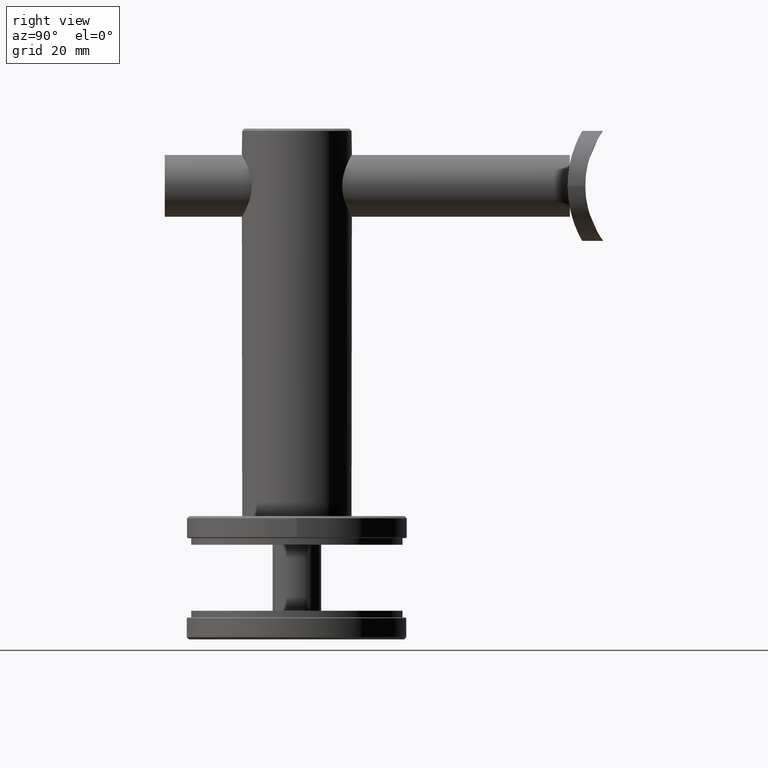
[diagram: clean part render]
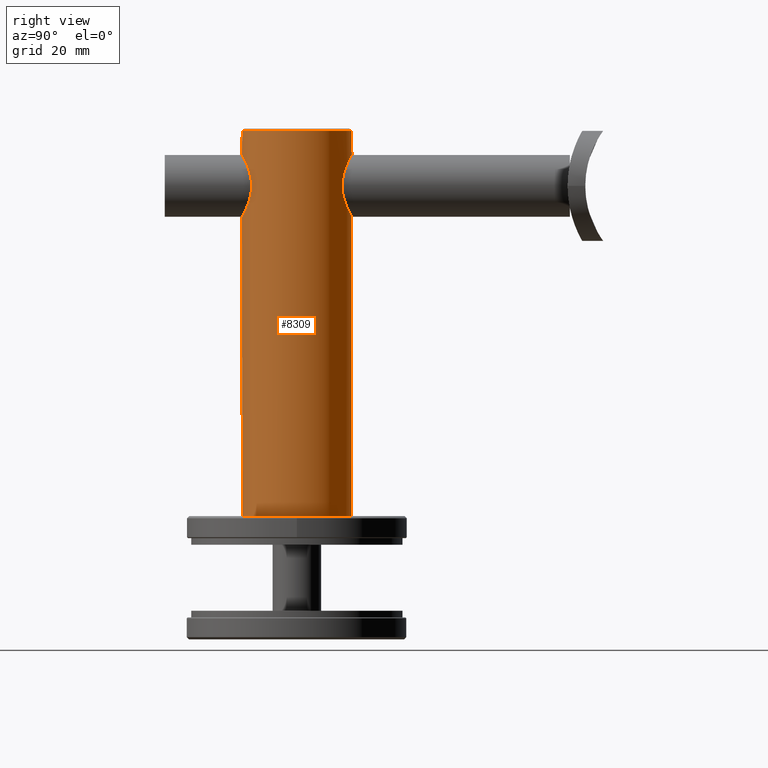
[diagram: same view with one face highlighted and labeled with its STEP entity id]
A machine part, right view. The second image highlights one B-rep face of the part: STEP entity #8309.
In plain terms, the highlighted cylindrical surface (bore or boss wall) has radius 12.5 mm, axis along (0, 0, -1).
Its self-contained STEP definition (entity closure, byte-faithful):
#35 = CARTESIAN_POINT ( 'NONE',  ( 4.693911986042605700, -11.59050969572359200, 74.65372349926248300 ) ) ;
#101 = CARTESIAN_POINT ( 'NONE',  ( 7.037625937007606000, -10.33066797645803400, 79.03146245814461700 ) ) ;
#181 = CARTESIAN_POINT ( 'NONE',  ( -12.50000000000000000, 0.0000000000000000000, 92.49999999999992900 ) ) ;
#195 = CARTESIAN_POINT ( 'NONE',  ( -1.853286471380417800, 12.37060092623068500, 73.12994769052774300 ) ) ;
#259 = CARTESIAN_POINT ( 'NONE',  ( 5.642930842882249100, 11.15754655068284000, 75.66678379310440100 ) ) ;
#320 = CARTESIAN_POINT ( 'NONE',  ( 2.561768883189979200, 12.23664740688127500, 73.37418452748443100 ) ) ;
#345 = EDGE_LOOP ( 'NONE', ( #6296 ) ) ;
#387 = CARTESIAN_POINT ( 'NONE',  ( -4.693911986042607500, 11.59050969572359500, 74.65372349926244100 ) ) ;
#687 = CARTESIAN_POINT ( 'NONE',  ( -12.27048429038587300, -2.384368947833684700, 80.96252044110579500 ) ) ;
#758 = CARTESIAN_POINT ( 'NONE',  ( -12.49643028261011300, 0.3415049694015387900, 77.50694967542543200 ) ) ;
#831 = CARTESIAN_POINT ( 'NONE',  ( -12.36584555837984900, 1.826434676164832900, 78.22618026212101900 ) ) ;
#912 = CARTESIAN_POINT ( 'NONE',  ( -12.44835718420770700, -1.145758669755629200, 82.25498875822646000 ) ) ;
#975 = CARTESIAN_POINT ( 'NONE',  ( -5.641618946878540300, 11.15821024869227400, 84.33490563956949900 ) ) ;
#985 = CARTESIAN_POINT ( 'NONE',  ( -12.43368545268307200, -1.293684300312520500, 82.17814739697726600 ) ) ;
#1106 = CARTESIAN_POINT ( 'NONE',  ( -2.561768883189977400, -12.23664740688127700, 73.37418452748443100 ) ) ;
#1124 = CARTESIAN_POINT ( 'NONE',  ( -12.23046832684916700, 2.581790949310058800, 80.00104714717409100 ) ) ;
#1144 = CARTESIAN_POINT ( 'NONE',  ( -4.167489591241087000, 11.78650720189665800, 85.75274438239226500 ) ) ;
#1177 = CARTESIAN_POINT ( 'NONE',  ( -6.361835953135453400, -10.76070739544479300, 76.83933852459222200 ) ) ;
#1240 = CARTESIAN_POINT ( 'NONE',  ( -6.144291566700927900, -10.88638881761785300, 76.43483257053729600 ) ) ;
#1255 = CARTESIAN_POINT ( 'NONE',  ( -12.31451094670359400, 2.145418407564679600, 81.39615240240594600 ) ) ;
#1367 = CARTESIAN_POINT ( 'NONE',  ( -5.335835450798519700, -11.30507663162559200, 84.68941556034548100 ) ) ;
#1435 = CARTESIAN_POINT ( 'NONE',  ( 2.552512006404772400, -12.23860169328429000, 86.62942539281218000 ) ) ;
#1559 = CARTESIAN_POINT ( 'NONE',  ( 5.354227270072694700, -11.30066879763864500, 84.68499769419686600 ) ) ;
#1694 = CARTESIAN_POINT ( 'NONE',  ( 7.001530568193297600, -10.35528030401141400, 78.79837147415904000 ) ) ;
#1725 = CARTESIAN_POINT ( 'NONE',  ( -7.001530568193298400, 10.35528030401141600, 78.79837147415901200 ) ) ;
#1762 = AXIS2_PLACEMENT_3D ( 'NONE', #2663, #15312, #5822 ) ;
#1789 = CARTESIAN_POINT ( 'NONE',  ( 7.049804425350002300, 10.32294463227303900, 80.96515897974055100 ) ) ;
#1811 = FACE_BOUND ( 'NONE', #345, .T. ) ;
#1854 = CARTESIAN_POINT ( 'NONE',  ( 4.716523181865117200, 11.58129685567271500, 74.67363696498284800 ) ) ;
#1924 = CARTESIAN_POINT ( 'NONE',  ( 3.605539113816680400, 11.97534002329462400, 73.86663764570010900 ) ) ;
#1985 = CARTESIAN_POINT ( 'NONE',  ( -6.859185124894941600, 10.45057995091122500, 78.10713310867888000 ) ) ;
#2160 = CARTESIAN_POINT ( 'NONE',  ( -4.703235346696010000, 11.58298069406303900, 85.32372804176566200 ) ) ;
#2280 = CARTESIAN_POINT ( 'NONE',  ( -12.41716814065016700, -1.436640305303482000, 77.91473517731044800 ) ) ;
#2351 = CARTESIAN_POINT ( 'NONE',  ( -12.28295426349316300, -2.320217730702971900, 78.88694419709261800 ) ) ;
#2431 = CARTESIAN_POINT ( 'NONE',  ( -12.25790753403024300, -2.449091687754438000, 80.81102413356170200 ) ) ;
#2452 = CARTESIAN_POINT ( 'NONE',  ( -4.350185171942293000, 11.72014306462431000, 85.61590526619761500 ) ) ;
#2500 = CARTESIAN_POINT ( 'NONE',  ( -12.41739162065920800, -1.434707405425410300, 82.08652194114984000 ) ) ;
#2571 = CARTESIAN_POINT ( 'NONE',  ( -12.29563780309713300, -2.254923467992178100, 81.26551305619401000 ) ) ;
#2663 = CARTESIAN_POINT ( 'NONE',  ( 0.0000000000000000000, 0.0000000000000000000, 92.49999999999992900 ) ) ;
#2694 = CARTESIAN_POINT ( 'NONE',  ( -6.718937078870830200, -10.54276979942761200, 82.34036103084744700 ) ) ;
#2710 = CARTESIAN_POINT ( 'NONE',  ( -12.23046101903848800, 2.581825567894134200, 79.83740140945408800 ) ) ;
#2759 = CARTESIAN_POINT ( 'NONE',  ( -4.360704997454967600, -11.72147315400054200, 74.37840787716005800 ) ) ;
#2827 = CARTESIAN_POINT ( 'NONE',  ( 1.853286471380416900, -12.37060092623069200, 73.12994769052775700 ) ) ;
#2895 = CARTESIAN_POINT ( 'NONE',  ( -3.184456486232202000, -12.09553283554605900, 86.36278829441434400 ) ) ;
#2912 = CARTESIAN_POINT ( 'NONE',  ( -12.29817642840795400, 2.239177090557027800, 81.26002018840563300 ) ) ;
#2965 = CARTESIAN_POINT ( 'NONE',  ( -5.625106057332109400, -11.16396342920787900, 84.33819548883795400 ) ) ;
#3034 = CARTESIAN_POINT ( 'NONE',  ( 5.175251503206552300, -11.37969477022132700, 75.13398084494915000 ) ) ;
#3067 = CIRCLE ( 'NONE', #9073, 12.50000000000000000 ) ;
#3100 = CARTESIAN_POINT ( 'NONE',  ( 5.618916498746309600, -11.16709125779064800, 75.65375140950391100 ) ) ;
#3293 = CARTESIAN_POINT ( 'NONE',  ( 6.856596184691691900, -10.45197745669437200, 81.85805003137291200 ) ) ;
#3323 = CARTESIAN_POINT ( 'NONE',  ( -7.037625937007599800, 10.33066797645802700, 79.03146245814458800 ) ) ;
#3391 = CARTESIAN_POINT ( 'NONE',  ( -6.356607340930143100, 10.76513610372195600, 76.80371625946746400 ) ) ;
#3457 = CARTESIAN_POINT ( 'NONE',  ( -2.310420913900503900, 12.29250456500398600, 73.27031743588234700 ) ) ;
#3508 = CARTESIAN_POINT ( 'NONE',  ( 0.0000000000000000000, 12.50000000000000900, 87.09999999999999400 ) ) ;
#3524 = CARTESIAN_POINT ( 'NONE',  ( -6.856596184691688300, 10.45197745669436900, 81.85805003137291200 ) ) ;
#3592 = CARTESIAN_POINT ( 'NONE',  ( 5.762524363847195900, 11.09342687341459800, 84.15394023452492400 ) ) ;
#3819 = CARTESIAN_POINT ( 'NONE',  ( -3.600675860934234000, 11.97681173761797200, 86.13622710087231800 ) ) ;
#3836 = ORIENTED_EDGE ( 'NONE', *, *, #12334, .F. ) ;
#3895 = CARTESIAN_POINT ( 'NONE',  ( -12.47310918696619600, -0.8342181446663503600, 77.61927697057785700 ) ) ;
#3972 = CARTESIAN_POINT ( 'NONE',  ( -12.23403564471512400, -2.565056403315160200, 80.32929715547818700 ) ) ;
#4050 = CARTESIAN_POINT ( 'NONE',  ( -12.47321102047029800, 0.8329561184921378000, 77.61876034139868400 ) ) ;
#4121 = CARTESIAN_POINT ( 'NONE',  ( -12.33086616637966400, -2.063339094937965500, 81.54347580391274200 ) ) ;
#4180 = CARTESIAN_POINT ( 'NONE',  ( -3.198048903789800800, 12.09203204625984400, 86.35616846345202200 ) ) ;
#4184 = CARTESIAN_POINT ( 'NONE',  ( -12.48312508354058000, -0.6701835518287474500, 82.42924852016827200 ) ) ;
#4307 = CARTESIAN_POINT ( 'NONE',  ( -1.662763347459026900, -12.39107304167199400, 73.09346473338199200 ) ) ;
#4318 = CARTESIAN_POINT ( 'NONE',  ( -12.27046648723404600, 2.384460564921596400, 80.96230595464940900 ) ) ;
#4358 = CARTESIAN_POINT ( 'NONE',  ( 1.872139394921787500, 12.36771263791769100, 86.86486067165591900 ) ) ;
#4428 = CARTESIAN_POINT ( 'NONE',  ( 1.626303258728256700E-016, 12.50000000000000900, 87.09999999999999400 ) ) ;
#4435 = EDGE_LOOP ( 'NONE', ( #18890 ) ) ;
#4444 = CARTESIAN_POINT ( 'NONE',  ( 3.575190798629522600, -11.98464729610662800, 73.84842911643905000 ) ) ;
#4480 = EDGE_LOOP ( 'NONE', ( #20482 ) ) ;
#4504 = CARTESIAN_POINT ( 'NONE',  ( -7.100939746325477300, -10.28720837068595800, 79.53372672903482500 ) ) ;
#4522 = CARTESIAN_POINT ( 'NONE',  ( -12.43356324150588700, 1.294716418200053200, 82.17746046415922500 ) ) ;
#4690 = B_SPLINE_CURVE_WITH_KNOTS ( 'NONE', 3,
 ( #10406, #5729, #18107, #16802, #4184, #19963, #8738, #912, #985, #2500, #10184, #12092, #16728, #4121, #2571, #687, #2431, #11874, #13691, #3972, #13559, #15289, #10334, #7093, #13629, #18185, #8586, #18395, #2351, #7027, #16503, #5506, #11799, #18330, #8661, #8813, #2280, #19894, #15073, #13410, #3895, #15000, #16582, #19747, #5655, #13488, #10256, #758, #5581, #16653, #4050, #7168, #15150, #18256, #831, #19820, #7231, #12433, #16871, #18541, #9217, #5801, #16939, #12298, #20221, #2710, #1124, #7571, #20153, #4318, #7447, #2912, #1255, #12235, #13832, #5933, #15495, #12169, #13902, #4522, #9084, #20286, #20092, #6061, #15356 ),
 .UNSPECIFIED., .T., .F.,
 ( 4, 3, 3, 3, 3, 3, 3, 3, 3, 3, 3, 3, 3, 3, 3, 3, 3, 3, 3, 3, 3, 3, 3, 3, 3, 3, 3, 3, 4 ),
 ( 0.0000000000000000000, 0.03571428571428571200, 0.07142857142857142500, 0.1071428571428571400, 0.1428571428571428500, 0.1785714285714285800, 0.2142857142857142700, 0.2500000000000000000, 0.2857142857142857000, 0.3214285714285714500, 0.3571428571428571500, 0.3928571428571428500, 0.4285714285714285500, 0.4642857142857143000, 0.5000000000000000000, 0.5357142857142857000, 0.5714285714285714000, 0.6071428571428571000, 0.6428571428571429000, 0.6785714285714286000, 0.7142857142857143000, 0.7500000000000000000, 0.7857142857142857000, 0.8214285714285714000, 0.8571428571428571000, 0.8928571428571429000, 0.9285714285714286000, 0.9642857142857143000, 1.000000000000000000 ),
 .UNSPECIFIED. ) ;
#4702 = CARTESIAN_POINT ( 'NONE',  ( 6.639358407684966300, -10.59150144861526900, 82.52634640713077400 ) ) ;
#4766 = CARTESIAN_POINT ( 'NONE',  ( 4.350185171942295700, -11.72014306462431100, 85.61590526619762900 ) ) ;
#4869 = EDGE_CURVE ( 'NONE', #20181, #20181, #4690, .T. ) ;
#4904 = CARTESIAN_POINT ( 'NONE',  ( 6.716677798686966100, -10.54423309525403800, 77.65288986509250400 ) ) ;
#4935 = CARTESIAN_POINT ( 'NONE',  ( -7.099407664463041300, 10.28826570890215400, 79.74334127595248800 ) ) ;
#5006 = CARTESIAN_POINT ( 'NONE',  ( 6.860853880118836100, 10.44947904693423300, 81.88678518319302700 ) ) ;
#5069 = CARTESIAN_POINT ( 'NONE',  ( 7.053651354597871400, 10.32029331651082200, 79.06324464011741800 ) ) ;
#5133 = CARTESIAN_POINT ( 'NONE',  ( -6.718676569906834900, 10.54116355741437700, 82.30751951410997000 ) ) ;
#5188 = CARTESIAN_POINT ( 'NONE',  ( 12.50000000000000000, 0.0000000000000000000, 5.000000000000004400 ) ) ;
#5201 = CARTESIAN_POINT ( 'NONE',  ( 5.335835450798510000, 11.30507663162559800, 84.68941556034549500 ) ) ;
#5470 = CARTESIAN_POINT ( 'NONE',  ( -5.354227270072692900, 11.30066879763865200, 84.68499769419686600 ) ) ;
#5506 = CARTESIAN_POINT ( 'NONE',  ( -12.33061314716617900, -2.053038477629675700, 78.46949508240453500 ) ) ;
#5551 = DIRECTION ( 'NONE',  ( 0.0000000000000000000, 0.0000000000000000000, -1.000000000000000000 ) ) ;
#5581 = CARTESIAN_POINT ( 'NONE',  ( -12.48971849393115700, 0.5068845453888349800, 77.53913938316971200 ) ) ;
#5588 = FACE_OUTER_BOUND ( 'NONE', #4435, .T. ) ;
#5655 = CARTESIAN_POINT ( 'NONE',  ( -12.50000000000000000, -0.1700820020573731400, 77.49029503976389300 ) ) ;
#5729 = CARTESIAN_POINT ( 'NONE',  ( -12.50000000000000000, -0.1698553404806654500, 82.50970459479894700 ) ) ;
#5801 = CARTESIAN_POINT ( 'NONE',  ( -12.25776322044042400, 2.449810243984445800, 79.19102811394681400 ) ) ;
#5822 = DIRECTION ( 'NONE',  ( -1.000000000000000000, 0.0000000000000000000, 0.0000000000000000000 ) ) ;
#5836 = CARTESIAN_POINT ( 'NONE',  ( 0.0000000000000000000, 0.0000000000000000000, 5.000000000000004400 ) ) ;
#5838 = VERTEX_POINT ( 'NONE', #181 ) ;
#5920 = CARTESIAN_POINT ( 'NONE',  ( -6.728327433932022900, -10.53676638689296600, 77.68631603766704100 ) ) ;
#5933 = CARTESIAN_POINT ( 'NONE',  ( -12.36594733669262100, 1.825745454915521400, 81.77449007377433100 ) ) ;
#5984 = CARTESIAN_POINT ( 'NONE',  ( -5.183621414992732200, -11.37587540671378200, 84.85708113046858600 ) ) ;
#6050 = CARTESIAN_POINT ( 'NONE',  ( 2.310420913900503400, -12.29250456500398400, 73.27031743588233300 ) ) ;
#6061 = CARTESIAN_POINT ( 'NONE',  ( -12.50000000000000000, 0.3402560415695205000, 82.50970608564425400 ) ) ;
#6110 = CARTESIAN_POINT ( 'NONE',  ( -3.605539113816680800, -11.97534002329462800, 73.86663764570012300 ) ) ;
#6296 = ORIENTED_EDGE ( 'NONE', *, *, #19721, .F. ) ;
#6311 = CARTESIAN_POINT ( 'NONE',  ( 1.652301775859467600, -12.39249494266610600, 86.90908524717154600 ) ) ;
#6447 = CARTESIAN_POINT ( 'NONE',  ( 4.703235346696010800, -11.58298069406304400, 85.32372804176564800 ) ) ;
#6509 = CARTESIAN_POINT ( 'NONE',  ( 4.872955847900103200, -11.51238539737940400, 85.16875609484240800 ) ) ;
#6529 = CARTESIAN_POINT ( 'NONE',  ( -12.50000000000000000, -3.061616997868382300E-015, 82.50970509121609100 ) ) ;
#6541 = CARTESIAN_POINT ( 'NONE',  ( -6.138928330866495900, 10.89252251643727700, 76.40402217390263200 ) ) ;
#6604 = CARTESIAN_POINT ( 'NONE',  ( 4.360704997454968500, 11.72147315400053800, 74.37840787716004300 ) ) ;
#6622 = CARTESIAN_POINT ( 'NONE',  ( -1.880117477014193300, 12.35990056820642600, 86.85058647304826700 ) ) ;
#6665 = CARTESIAN_POINT ( 'NONE',  ( -5.175251503206549600, 11.37969477022133100, 75.13398084494915000 ) ) ;
#6731 = CARTESIAN_POINT ( 'NONE',  ( -6.460839592141698300, 10.70133331722410100, 82.95314374847103500 ) ) ;
#6803 = CARTESIAN_POINT ( 'NONE',  ( 6.460840631977733400, 10.70133156741372800, 77.04687974980271300 ) ) ;
#6898 = CARTESIAN_POINT ( 'NONE',  ( -0.4817035191452535600, 12.49297693224775000, 87.08765612089992200 ) ) ;
#7027 = CARTESIAN_POINT ( 'NONE',  ( -12.29805507851957800, -2.239827864232924300, 78.74114934669363200 ) ) ;
#7093 = CARTESIAN_POINT ( 'NONE',  ( -12.23406338028477500, -2.564921971165615000, 79.67005880080050400 ) ) ;
#7168 = CARTESIAN_POINT ( 'NONE',  ( -12.46073668931870800, 0.9899702821128711900, 77.68212557694641900 ) ) ;
#7231 = CARTESIAN_POINT ( 'NONE',  ( -12.33066589463391700, 2.052733168493389400, 78.46907425830478600 ) ) ;
#7447 = CARTESIAN_POINT ( 'NONE',  ( -12.28301403660254800, 2.319890705269426900, 81.11349947163252200 ) ) ;
#7479 = DIRECTION ( 'NONE',  ( 1.000000000000000000, 0.0000000000000000000, 0.0000000000000000000 ) ) ;
#7492 = CARTESIAN_POINT ( 'NONE',  ( -4.352464271525047200, -11.72468594015717100, 85.62834435256026200 ) ) ;
#7556 = CARTESIAN_POINT ( 'NONE',  ( -6.025128862940238000, -10.95302243981158300, 76.23699854062238000 ) ) ;
#7571 = CARTESIAN_POINT ( 'NONE',  ( -12.23048294247052500, 2.581721712141908500, 80.32833862261412600 ) ) ;
#7689 = CARTESIAN_POINT ( 'NONE',  ( -2.339435591207807100, -12.28124712014009600, 73.29235815591162900 ) ) ;
#7884 = CARTESIAN_POINT ( 'NONE',  ( 5.756534759608706900, -11.09653907833739300, 75.83776719106902000 ) ) ;
#7943 = CARTESIAN_POINT ( 'NONE',  ( 6.023856308707191700, -10.95372243787465800, 83.76503293258987500 ) ) ;
#8010 = CARTESIAN_POINT ( 'NONE',  ( 7.099407664463043100, -10.28826570890215900, 79.74334127595248800 ) ) ;
#8020 = VERTEX_POINT ( 'NONE', #11369 ) ;
#8073 = CARTESIAN_POINT ( 'NONE',  ( 6.859185124894938000, -10.45057995091122300, 78.10713310867888000 ) ) ;
#8107 = CARTESIAN_POINT ( 'NONE',  ( 1.662763347459024000, 12.39107304167199600, 73.09346473338197800 ) ) ;
#8170 = CARTESIAN_POINT ( 'NONE',  ( 6.361835953135452500, 10.76070739544479300, 76.83933852459222200 ) ) ;
#8231 = CARTESIAN_POINT ( 'NONE',  ( -7.086570340510785800, 10.29715497009006100, 79.50324592782914100 ) ) ;
#8296 = CARTESIAN_POINT ( 'NONE',  ( -6.143396690811448100, 10.88689843328966600, 83.56675204116639600 ) ) ;
#8309 = ADVANCED_FACE ( 'NONE', ( #10264, #15973, #1811, #18221, #5588 ), #17706, .T. ) ;
#8367 = CARTESIAN_POINT ( 'NONE',  ( 1.889983813216502100, 12.35839596780823300, 73.15212593721565800 ) ) ;
#8485 = CARTESIAN_POINT ( 'NONE',  ( 0.0000000000000000000, 0.0000000000000000000, 93.00000000000000000 ) ) ;
#8524 = CARTESIAN_POINT ( 'NONE',  ( -0.9563567616744034200, 12.46562845003937300, 87.03933869854881800 ) ) ;
#8586 = CARTESIAN_POINT ( 'NONE',  ( -12.25771000552910000, -2.450085953040250800, 79.19168423599231200 ) ) ;
#8600 = CARTESIAN_POINT ( 'NONE',  ( -1.652301775859467400, 12.39249494266610100, 86.90908524717156100 ) ) ;
#8661 = CARTESIAN_POINT ( 'NONE',  ( -12.38353381398188100, -1.706635365095435800, 78.10970048745034000 ) ) ;
#8738 = CARTESIAN_POINT ( 'NONE',  ( -12.46072052156760500, -0.9901737642373450400, 82.31779229075020500 ) ) ;
#8813 = CARTESIAN_POINT ( 'NONE',  ( -12.40093318555858000, -1.576962253938744700, 78.00609003087140500 ) ) ;
#9008 = B_SPLINE_CURVE_WITH_KNOTS ( 'NONE', 3,
 ( #4428, #12270, #13867, #4358, #19461, #17684, #16015, #11380, #17619, #14706, #5201, #19389, #3592, #14509, #9965, #12856, #5006, #1789, #9694, #16279, #5069, #14577, #13113, #6803, #8170, #11311, #17875, #259, #19256, #1854, #6604, #1924, #9893, #320, #9825, #8367, #8107, #19192, #16079, #11512, #9763, #195, #3457, #12985, #11253, #16146, #387, #6665, #14448, #17744, #12917, #6541, #3391, #11443, #1985, #1725, #3323, #8231, #4935, #19323, #14636, #13048, #3524, #5133, #16207, #6731, #17806, #8296, #13329, #975, #5470, #9449, #2160, #2452, #1144, #3819, #4180, #17786, #19791, #6622, #8600, #16519, #8524, #6898, #17897, #10199 ),
 .UNSPECIFIED., .T., .F.,
 ( 4, 2, 2, 2, 2, 2, 2, 2, 2, 2, 2, 2, 2, 2, 2, 2, 2, 2, 2, 2, 2, 2, 2, 2, 2, 2, 2, 2, 2, 2, 2, 2, 2, 2, 2, 2, 2, 2, 2, 2, 2, 2, 4 ),
 ( 0.0000000000000000000, 0.001417821200762001300, 0.002835642401524002600, 0.004253463602286003900, 0.005671284803048006100, 0.006380195403429008900, 0.007089106003810008300, 0.008506927204572009600, 0.009924748405334008300, 0.01134256960609600900, 0.01276039080685800900, 0.01417821200762001000, 0.01488712260800102500, 0.01559603320838204300, 0.01701385440914408200, 0.01843167560990611700, 0.01984949681066815200, 0.02055840741104917800, 0.02126731801143020400, 0.02268513921219226700, 0.02410296041295432700, 0.02552078161371639300, 0.02693860281447845200, 0.02835642401524051200, 0.02906533461562153100, 0.02977424521600254700, 0.03119206641676460600, 0.03260988761752667300, 0.03331879821790768200, 0.03402770881828869100, 0.03544553001905066700, 0.03615444061943166200, 0.03686335121981265700, 0.03757226182019364500, 0.03828117242057463300, 0.03969899362133665100, 0.04040790422171763900, 0.04111681482209863400, 0.04253463602286063800, 0.04324354662324163300, 0.04395245722362262800, 0.04466136782400362300, 0.04537027842438462500 ),
 .UNSPECIFIED. ) ;
#9065 = CARTESIAN_POINT ( 'NONE',  ( -7.049804425350002300, -10.32294463227304100, 80.96515897974057900 ) ) ;
#9073 = AXIS2_PLACEMENT_3D ( 'NONE', #5836, #10448, #7479 ) ;
#9084 = CARTESIAN_POINT ( 'NONE',  ( -12.44824318700079900, 1.147204252107365500, 82.25440359961696400 ) ) ;
#9137 = CARTESIAN_POINT ( 'NONE',  ( -3.203955867126916600, -12.09038730092472300, 73.64696696464361000 ) ) ;
#9197 = CARTESIAN_POINT ( 'NONE',  ( -5.762524363847187900, -11.09342687341460000, 84.15394023452493900 ) ) ;
#9217 = CARTESIAN_POINT ( 'NONE',  ( -12.27031867606493900, 2.385221077345237400, 79.03947666272819100 ) ) ;
#9332 = CARTESIAN_POINT ( 'NONE',  ( -5.642930842882246400, -11.15754655068283600, 75.66678379310434400 ) ) ;
#9396 = CARTESIAN_POINT ( 'NONE',  ( 6.138928330866495000, -10.89252251643727800, 76.40402217390261800 ) ) ;
#9449 = CARTESIAN_POINT ( 'NONE',  ( -4.872955847900104900, 11.51238539737940100, 85.16875609484242200 ) ) ;
#9463 = CARTESIAN_POINT ( 'NONE',  ( 5.641618946878534000, -11.15821024869228100, 84.33490563956949900 ) ) ;
#9595 = CARTESIAN_POINT ( 'NONE',  ( 0.4817035191452519500, -12.49297693224775000, 87.08765612089989400 ) ) ;
#9661 = CARTESIAN_POINT ( 'NONE',  ( 3.600675860934234000, -11.97681173761797200, 86.13622710087233300 ) ) ;
#9694 = CARTESIAN_POINT ( 'NONE',  ( 7.099032266065081300, 10.28852478386591500, 80.49446630777879400 ) ) ;
#9763 = CARTESIAN_POINT ( 'NONE',  ( -0.9286070184467031300, 12.47413832801099100, 72.94521591505606800 ) ) ;
#9825 = CARTESIAN_POINT ( 'NONE',  ( 2.339435591207806600, 12.28124712014009400, 73.29235815591164300 ) ) ;
#9893 = CARTESIAN_POINT ( 'NONE',  ( 3.203955867126915700, 12.09038730092472500, 73.64696696464356800 ) ) ;
#9965 = CARTESIAN_POINT ( 'NONE',  ( 6.360965238899708200, 10.76253835036409800, 83.18740120694651800 ) ) ;
#10184 = CARTESIAN_POINT ( 'NONE',  ( -12.40109778863534400, -1.575730510538300200, 81.99489648532240000 ) ) ;
#10199 = CARTESIAN_POINT ( 'NONE',  ( 1.626303258728256700E-016, 12.50000000000000900, 87.09999999999999400 ) ) ;
#10203 = CIRCLE ( 'NONE', #1762, 12.50000000000000000 ) ;
#10256 = CARTESIAN_POINT ( 'NONE',  ( -12.50000000000000000, 0.1700820020573670900, 77.49029477781373000 ) ) ;
#10264 = FACE_OUTER_BOUND ( 'NONE', #4480, .T. ) ;
#10334 = CARTESIAN_POINT ( 'NONE',  ( -12.23043949217223800, -2.581927545046774200, 79.83666403690625700 ) ) ;
#10406 = CARTESIAN_POINT ( 'NONE',  ( -12.50000000000000000, -3.061616997868382300E-015, 82.50970509121609100 ) ) ;
#10448 = DIRECTION ( 'NONE',  ( 0.0000000000000000000, 0.0000000000000000000, 1.000000000000000000 ) ) ;
#10677 = CARTESIAN_POINT ( 'NONE',  ( -6.460840631977733400, -10.70133156741373000, 77.04687974980271300 ) ) ;
#10746 = CARTESIAN_POINT ( 'NONE',  ( 0.9286070184467023500, -12.47413832801099400, 72.94521591505608200 ) ) ;
#10816 = CARTESIAN_POINT ( 'NONE',  ( -2.328163915045303100, -12.28911430792146800, 86.72350286509373500 ) ) ;
#10949 = CARTESIAN_POINT ( 'NONE',  ( 3.198048903789800800, -12.09203204625984400, 86.35616846345202200 ) ) ;
#11018 = CARTESIAN_POINT ( 'NONE',  ( 1.190421084666685800, -12.44535775715966400, 87.00346041270835000 ) ) ;
#11155 = CARTESIAN_POINT ( 'NONE',  ( 7.101124007438881900, -10.28708120721371700, 80.46248176011640400 ) ) ;
#11221 = CARTESIAN_POINT ( 'NONE',  ( 5.328153462786819000, -11.30871037991072600, 75.30182161819438100 ) ) ;
#11253 = CARTESIAN_POINT ( 'NONE',  ( -3.575190798629518200, 11.98464729610662300, 73.84842911643902100 ) ) ;
#11311 = CARTESIAN_POINT ( 'NONE',  ( 6.144291566700926100, 10.88638881761785400, 76.43483257053731000 ) ) ;
#11369 = CARTESIAN_POINT ( 'NONE',  ( 0.0000000000000000000, -12.49999999999999500, 87.09999999999999400 ) ) ;
#11380 = CARTESIAN_POINT ( 'NONE',  ( 4.352464271525046300, 11.72468594015717100, 85.62834435256026200 ) ) ;
#11443 = CARTESIAN_POINT ( 'NONE',  ( -6.716677798686967000, 10.54423309525403600, 77.65288986509251900 ) ) ;
#11512 = CARTESIAN_POINT ( 'NONE',  ( -0.4559300718457330900, 12.50090470285381800, 72.89840720695659100 ) ) ;
#11799 = CARTESIAN_POINT ( 'NONE',  ( -12.34833964361937600, -1.944999238366209800, 78.34145907401415300 ) ) ;
#11874 = CARTESIAN_POINT ( 'NONE',  ( -12.24772887271964100, -2.498855731869680700, 80.65215447260474900 ) ) ;
#12092 = CARTESIAN_POINT ( 'NONE',  ( -12.38346383625171800, -1.707111763978115300, 81.88983859998589300 ) ) ;
#12140 = EDGE_CURVE ( 'NONE', #12764, #12764, #3067, .T. ) ;
#12169 = CARTESIAN_POINT ( 'NONE',  ( -12.40127992458766700, 1.574179696255175700, 81.99592039492698300 ) ) ;
#12235 = CARTESIAN_POINT ( 'NONE',  ( -12.33084546499923600, 2.051659724572331400, 81.53228461640625800 ) ) ;
#12270 = CARTESIAN_POINT ( 'NONE',  ( 0.4800627823512708700, 12.50000000000000900, 87.09999999999998000 ) ) ;
#12298 = CARTESIAN_POINT ( 'NONE',  ( -12.24089397872543800, 2.531899405901294000, 79.50899801188620600 ) ) ;
#12334 = EDGE_CURVE ( 'NONE', #17461, #17461, #9008, .T. ) ;
#12355 = CARTESIAN_POINT ( 'NONE',  ( -3.523657060577889400E-016, -12.49999999999999300, 87.10000000000000900 ) ) ;
#12418 = CARTESIAN_POINT ( 'NONE',  ( -0.9502310381377858700, -12.47246097537638400, 87.05182805586086700 ) ) ;
#12433 = CARTESIAN_POINT ( 'NONE',  ( -12.31434454340082900, 2.146373328760461200, 78.60523519148230800 ) ) ;
#12545 = CARTESIAN_POINT ( 'NONE',  ( 2.329605151280716800, -12.28311538749230200, 86.71105927489931300 ) ) ;
#12646 = AXIS2_PLACEMENT_3D ( 'NONE', #8485, #5551, #19647 ) ;
#12685 = CARTESIAN_POINT ( 'NONE',  ( -3.523657060577889400E-016, -12.49999999999999300, 87.10000000000000900 ) ) ;
#12764 = VERTEX_POINT ( 'NONE', #5188 ) ;
#12819 = CARTESIAN_POINT ( 'NONE',  ( 6.915009424120476900, -10.41324950567328300, 81.62736897290308500 ) ) ;
#12856 = CARTESIAN_POINT ( 'NONE',  ( 6.718937078870830200, 10.54276979942761500, 82.34036103084744700 ) ) ;
#12917 = CARTESIAN_POINT ( 'NONE',  ( -5.756534759608702400, 11.09653907833739200, 75.83776719106900500 ) ) ;
#12985 = CARTESIAN_POINT ( 'NONE',  ( -3.169272846726296500, 12.09956292198342500, 73.62956972911710800 ) ) ;
#13048 = CARTESIAN_POINT ( 'NONE',  ( -6.915009424120472500, 10.41324950567328100, 81.62736897290307100 ) ) ;
#13113 = CARTESIAN_POINT ( 'NONE',  ( 6.728327433932026500, 10.53676638689296600, 77.68631603766708300 ) ) ;
#13329 = CARTESIAN_POINT ( 'NONE',  ( -6.023856308707189900, 10.95372243787466000, 83.76503293258986100 ) ) ;
#13410 = CARTESIAN_POINT ( 'NONE',  ( -12.46074660338095600, -0.9898454860886062300, 77.68207521481852500 ) ) ;
#13488 = CARTESIAN_POINT ( 'NONE',  ( -12.50000000000000000, -3.061616997868382300E-015, 77.49029490878881200 ) ) ;
#13559 = CARTESIAN_POINT ( 'NONE',  ( -12.23049726165456400, -2.581653879244425900, 80.16633843205114800 ) ) ;
#13629 = CARTESIAN_POINT ( 'NONE',  ( -12.24087703115415400, -2.531981340405705000, 79.50939742000596800 ) ) ;
#13691 = CARTESIAN_POINT ( 'NONE',  ( -12.24088225871738300, -2.531956067592420600, 80.49072581404146800 ) ) ;
#13817 = CARTESIAN_POINT ( 'NONE',  ( -1.889983813216502100, -12.35839596780823000, 73.15212593721565800 ) ) ;
#13832 = CARTESIAN_POINT ( 'NONE',  ( -12.34831222666942600, 1.945189729711045400, 81.65835860730116700 ) ) ;
#13867 = CARTESIAN_POINT ( 'NONE',  ( 0.9502310381377845300, 12.47246097537638400, 87.05182805586086700 ) ) ;
#13902 = CARTESIAN_POINT ( 'NONE',  ( -12.41742158304677800, 1.434448057227614400, 82.08669042954309700 ) ) ;
#13945 = CARTESIAN_POINT ( 'NONE',  ( 3.169272846726294300, -12.09956292198341800, 73.62956972911712200 ) ) ;
#14010 = CARTESIAN_POINT ( 'NONE',  ( -7.099032266065081300, -10.28852478386591500, 80.49446630777879400 ) ) ;
#14075 = CARTESIAN_POINT ( 'NONE',  ( -3.588686174087189200, -11.98054828353597200, 86.14357688401588600 ) ) ;
#14146 = CARTESIAN_POINT ( 'NONE',  ( 0.2400313911756330200, -12.49999999999999300, 87.10000000000000900 ) ) ;
#14448 = CARTESIAN_POINT ( 'NONE',  ( -5.328153462786819000, 11.30871037991073000, 75.30182161819441000 ) ) ;
#14509 = CARTESIAN_POINT ( 'NONE',  ( 6.144214611907544000, 10.88952956567640500, 83.58695593317942500 ) ) ;
#14577 = CARTESIAN_POINT ( 'NONE',  ( 6.868284871124011200, 10.44457344749546500, 78.14038418871585600 ) ) ;
#14636 = CARTESIAN_POINT ( 'NONE',  ( -7.054202409483233200, 10.31991815754175500, 80.93325709459463700 ) ) ;
#14706 = CARTESIAN_POINT ( 'NONE',  ( 5.183621414992734000, 11.37587540671378300, 84.85708113046858600 ) ) ;
#14992 = B_SPLINE_CURVE_WITH_KNOTS ( 'NONE', 3,
 ( #12355, #17061, #12418, #20334, #10816, #2895, #14075, #7492, #18595, #5984, #1367, #2965, #9197, #15671, #20140, #2694, #17258, #9065, #14010, #4504, #15613, #18846, #5920, #10677, #1177, #1240, #7556, #9332, #18651, #20404, #2759, #6110, #9137, #1106, #7689, #13817, #4307, #15412, #16990, #20203, #10746, #2827, #6050, #13945, #4444, #17127, #35, #3034, #11221, #3100, #7884, #9396, #18909, #4904, #8073, #1694, #101, #17452, #8010, #11155, #15921, #12819, #3293, #19158, #4702, #20472, #18974, #15984, #7943, #9463, #1559, #6509, #6447, #4766, #15796, #9661, #10949, #1435, #12545, #17585, #6311, #11018, #17519, #9595, #14146, #12685 ),
 .UNSPECIFIED., .T., .F.,
 ( 4, 2, 2, 2, 2, 2, 2, 2, 2, 2, 2, 2, 2, 2, 2, 2, 2, 2, 2, 2, 2, 2, 2, 2, 2, 2, 2, 2, 2, 2, 2, 2, 2, 2, 2, 2, 2, 2, 2, 2, 2, 2, 4 ),
 ( 0.0000000000000000000, 0.001417821200762001500, 0.002835642401524003000, 0.004253463602286004800, 0.005671284803048006100, 0.006380195403429006300, 0.007089106003810005700, 0.008506927204572006100, 0.009924748405334006500, 0.01134256960609600700, 0.01276039080685800700, 0.01417821200762000600, 0.01488712260800102400, 0.01559603320838204300, 0.01701385440914407800, 0.01843167560990611700, 0.01984949681066815200, 0.02055840741104917800, 0.02126731801143020400, 0.02268513921219226700, 0.02410296041295432700, 0.02552078161371639300, 0.02693860281447845200, 0.02835642401524051500, 0.02906533461562153100, 0.02977424521600254700, 0.03119206641676461000, 0.03260988761752667300, 0.03331879821790768200, 0.03402770881828869100, 0.03544553001905067400, 0.03615444061943166200, 0.03686335121981265700, 0.03757226182019364500, 0.03828117242057464000, 0.03969899362133665100, 0.04040790422171763900, 0.04111681482209863400, 0.04253463602286063800, 0.04324354662324163300, 0.04395245722362263500, 0.04466136782400363000, 0.04537027842438462500 ),
 .UNSPECIFIED. ) ;
#15000 = CARTESIAN_POINT ( 'NONE',  ( -12.48292985430368600, -0.6741327792177097500, 77.57170031767452700 ) ) ;
#15073 = CARTESIAN_POINT ( 'NONE',  ( -12.44838401979571800, -1.145472827510862100, 77.74487345905919300 ) ) ;
#15150 = CARTESIAN_POINT ( 'NONE',  ( -12.43578802701552600, 1.303998609354338100, 77.80885604804187500 ) ) ;
#15289 = CARTESIAN_POINT ( 'NONE',  ( -12.23046837691340200, -2.581790712145600100, 80.00150123447871000 ) ) ;
#15312 = DIRECTION ( 'NONE',  ( -0.0000000000000000000, -0.0000000000000000000, -1.000000000000000000 ) ) ;
#15356 = CARTESIAN_POINT ( 'NONE',  ( -12.50000000000000000, -3.061616997868382300E-015, 82.50970509121609100 ) ) ;
#15412 = CARTESIAN_POINT ( 'NONE',  ( -0.9736099433189165900, -12.47060447504791700, 72.95144489749591800 ) ) ;
#15495 = CARTESIAN_POINT ( 'NONE',  ( -12.38358244671581500, 1.706301180119997400, 81.89062154024748000 ) ) ;
#15613 = CARTESIAN_POINT ( 'NONE',  ( -7.053651354597871400, -10.32029331651082200, 79.06324464011741800 ) ) ;
#15671 = CARTESIAN_POINT ( 'NONE',  ( -6.144214611907535200, -10.88952956567641000, 83.58695593317949600 ) ) ;
#15796 = CARTESIAN_POINT ( 'NONE',  ( 4.167489591241089600, -11.78650720189666100, 85.75274438239227900 ) ) ;
#15921 = CARTESIAN_POINT ( 'NONE',  ( 7.054202409483235800, -10.31991815754176800, 80.93325709459465100 ) ) ;
#15973 = FACE_BOUND ( 'NONE', #16639, .T. ) ;
#15984 = CARTESIAN_POINT ( 'NONE',  ( 6.143396690811446300, -10.88689843328965900, 83.56675204116636700 ) ) ;
#16015 = CARTESIAN_POINT ( 'NONE',  ( 3.588686174087187400, 11.98054828353597000, 86.14357688401587200 ) ) ;
#16079 = CARTESIAN_POINT ( 'NONE',  ( 0.5042569077676455300, 12.49904858744114800, 72.90167502860092000 ) ) ;
#16146 = CARTESIAN_POINT ( 'NONE',  ( -4.342869847070072200, 11.72830940716054800, 74.36410654168396700 ) ) ;
#16207 = CARTESIAN_POINT ( 'NONE',  ( -6.639358407684963700, 10.59150144861526100, 82.52634640713076000 ) ) ;
#16279 = CARTESIAN_POINT ( 'NONE',  ( 7.100939746325477300, 10.28720837068595800, 79.53372672903482500 ) ) ;
#16503 = CARTESIAN_POINT ( 'NONE',  ( -12.31433411284287900, -2.146433170931300300, 78.60532221454907600 ) ) ;
#16519 = CARTESIAN_POINT ( 'NONE',  ( -1.190421084666685800, 12.44535775715966800, 87.00346041270837800 ) ) ;
#16582 = CARTESIAN_POINT ( 'NONE',  ( -12.48971542772271600, -0.5069600916296646000, 77.53915408839603200 ) ) ;
#16639 = EDGE_LOOP ( 'NONE', ( #18644 ) ) ;
#16653 = CARTESIAN_POINT ( 'NONE',  ( -12.48300670525219900, 0.6722641213761312300, 77.57132909091399100 ) ) ;
#16728 = CARTESIAN_POINT ( 'NONE',  ( -12.36593127962770000, -1.825854207631398600, 81.77438433462818100 ) ) ;
#16802 = CARTESIAN_POINT ( 'NONE',  ( -12.48982258640161200, -0.5043131568898000500, 82.46135978384009500 ) ) ;
#16871 = CARTESIAN_POINT ( 'NONE',  ( -12.29802319216774200, 2.240013489027532900, 78.74139612465984300 ) ) ;
#16939 = CARTESIAN_POINT ( 'NONE',  ( -12.24777739071416100, 2.498620391668170600, 79.34686524170126600 ) ) ;
#16990 = CARTESIAN_POINT ( 'NONE',  ( -0.5042569077676458700, -12.49904858744115200, 72.90167502860092000 ) ) ;
#17061 = CARTESIAN_POINT ( 'NONE',  ( -0.4800627823512705300, -12.49999999999999600, 87.09999999999998000 ) ) ;
#17127 = CARTESIAN_POINT ( 'NONE',  ( 4.342869847070072200, -11.72830940716055200, 74.36410654168391000 ) ) ;
#17258 = CARTESIAN_POINT ( 'NONE',  ( -6.860853880118836100, -10.44947904693423100, 81.88678518319302700 ) ) ;
#17452 = CARTESIAN_POINT ( 'NONE',  ( 7.086570340510783200, -10.29715497009005700, 79.50324592782914100 ) ) ;
#17461 = VERTEX_POINT ( 'NONE', #3508 ) ;
#17519 = CARTESIAN_POINT ( 'NONE',  ( 0.9563567616744069700, -12.46562845003936800, 87.03933869854878900 ) ) ;
#17585 = CARTESIAN_POINT ( 'NONE',  ( 1.880117477014193300, -12.35990056820642600, 86.85058647304826700 ) ) ;
#17588 = EDGE_CURVE ( 'NONE', #5838, #5838, #10203, .T. ) ;
#17619 = CARTESIAN_POINT ( 'NONE',  ( 4.704088486941905100, 11.58634715858313200, 85.33724871396501000 ) ) ;
#17684 = CARTESIAN_POINT ( 'NONE',  ( 3.184456486232198900, 12.09553283554605800, 86.36278829441432900 ) ) ;
#17706 = CYLINDRICAL_SURFACE ( 'NONE', #12646, 12.50000000000000000 ) ;
#17744 = CARTESIAN_POINT ( 'NONE',  ( -5.618916498746308700, 11.16709125779064000, 75.65375140950388300 ) ) ;
#17786 = CARTESIAN_POINT ( 'NONE',  ( -2.552512006404772400, 12.23860169328429000, 86.62942539281218000 ) ) ;
#17806 = CARTESIAN_POINT ( 'NONE',  ( -6.361636014312697500, 10.76083024765457300, 83.16111218485477300 ) ) ;
#17875 = CARTESIAN_POINT ( 'NONE',  ( 6.025128862940238000, 10.95302243981158900, 76.23699854062239500 ) ) ;
#17897 = CARTESIAN_POINT ( 'NONE',  ( -0.2400313911756351600, 12.50000000000000900, 87.09999999999999400 ) ) ;
#18107 = CARTESIAN_POINT ( 'NONE',  ( -12.49652008926264600, -0.3384427619508525400, 82.49347104751193200 ) ) ;
#18185 = CARTESIAN_POINT ( 'NONE',  ( -12.24769068202353300, -2.499040709645794900, 79.34873603921143100 ) ) ;
#18221 = FACE_BOUND ( 'NONE', #19200, .T. ) ;
#18256 = CARTESIAN_POINT ( 'NONE',  ( -12.40114792061166900, 1.587420620583437100, 77.99363649983639800 ) ) ;
#18330 = CARTESIAN_POINT ( 'NONE',  ( -12.36593672880062800, -1.825817301730822800, 78.22557978073224700 ) ) ;
#18395 = CARTESIAN_POINT ( 'NONE',  ( -12.27033213451113100, -2.385151841871611600, 79.03931421654246500 ) ) ;
#18541 = CARTESIAN_POINT ( 'NONE',  ( -12.28287413168945400, 2.320631910706028900, 78.88792521150956800 ) ) ;
#18595 = CARTESIAN_POINT ( 'NONE',  ( -4.704088486941909500, -11.58634715858313100, 85.33724871396499600 ) ) ;
#18644 = ORIENTED_EDGE ( 'NONE', *, *, #4869, .T. ) ;
#18651 = CARTESIAN_POINT ( 'NONE',  ( -5.355958186748809500, -11.29981148896228900, 75.31711136074473200 ) ) ;
#18846 = CARTESIAN_POINT ( 'NONE',  ( -6.868284871124011200, -10.44457344749546500, 78.14038418871585600 ) ) ;
#18890 = ORIENTED_EDGE ( 'NONE', *, *, #12140, .T. ) ;
#18909 = CARTESIAN_POINT ( 'NONE',  ( 6.356607340930142200, -10.76513610372195400, 76.80371625946746400 ) ) ;
#18974 = CARTESIAN_POINT ( 'NONE',  ( 6.361636014312694900, -10.76083024765457300, 83.16111218485477300 ) ) ;
#19158 = CARTESIAN_POINT ( 'NONE',  ( 6.718676569906835800, -10.54116355741437700, 82.30751951410998400 ) ) ;
#19192 = CARTESIAN_POINT ( 'NONE',  ( 0.9736099433189137100, 12.47060447504791500, 72.95144489749591800 ) ) ;
#19200 = EDGE_LOOP ( 'NONE', ( #3836 ) ) ;
#19256 = CARTESIAN_POINT ( 'NONE',  ( 5.355958186748810400, 11.29981148896229300, 75.31711136074470400 ) ) ;
#19323 = CARTESIAN_POINT ( 'NONE',  ( -7.101124007438878400, 10.28708120721371300, 80.46248176011639000 ) ) ;
#19389 = CARTESIAN_POINT ( 'NONE',  ( 5.625106057332099700, 11.16396342920788200, 84.33819548883796800 ) ) ;
#19461 = CARTESIAN_POINT ( 'NONE',  ( 2.328163915045302600, 12.28911430792146800, 86.72350286509372100 ) ) ;
#19647 = DIRECTION ( 'NONE',  ( -1.000000000000000000, 0.0000000000000000000, 0.0000000000000000000 ) ) ;
#19721 = EDGE_CURVE ( 'NONE', #8020, #8020, #14992, .T. ) ;
#19747 = CARTESIAN_POINT ( 'NONE',  ( -12.49650100114174800, -0.3397874040416194500, 77.50660785911752300 ) ) ;
#19791 = CARTESIAN_POINT ( 'NONE',  ( -2.329605151280716800, 12.28311538749230200, 86.71105927489931300 ) ) ;
#19820 = CARTESIAN_POINT ( 'NONE',  ( -12.34819437726394000, 1.945941703955530900, 78.34245214326334400 ) ) ;
#19894 = CARTESIAN_POINT ( 'NONE',  ( -12.43340309574175600, -1.296318356668219300, 77.82338032374949000 ) ) ;
#19963 = CARTESIAN_POINT ( 'NONE',  ( -12.47308385892750200, -0.8345888587190610800, 82.38059582327395000 ) ) ;
#20092 = CARTESIAN_POINT ( 'NONE',  ( -12.48569161567905400, 0.6759060831371772600, 82.44465311297575700 ) ) ;
#20140 = CARTESIAN_POINT ( 'NONE',  ( -6.360965238899706400, -10.76253835036409600, 83.18740120694651800 ) ) ;
#20153 = CARTESIAN_POINT ( 'NONE',  ( -12.24537138849704100, 2.513600284225936000, 80.65991892068322500 ) ) ;
#20181 = VERTEX_POINT ( 'NONE', #6529 ) ;
#20203 = CARTESIAN_POINT ( 'NONE',  ( 0.4559300718457330300, -12.50090470285381400, 72.89840720695660500 ) ) ;
#20221 = CARTESIAN_POINT ( 'NONE',  ( -12.23401056673671600, 2.565178420134417900, 79.67113078207114500 ) ) ;
#20286 = CARTESIAN_POINT ( 'NONE',  ( -12.46072599656021800, 0.9901048624506362300, 82.31782010406990900 ) ) ;
#20334 = CARTESIAN_POINT ( 'NONE',  ( -1.872139394921788600, -12.36771263791769500, 86.86486067165593300 ) ) ;
#20404 = CARTESIAN_POINT ( 'NONE',  ( -4.716523181865119900, -11.58129685567271300, 74.67363696498289000 ) ) ;
#20472 = CARTESIAN_POINT ( 'NONE',  ( 6.460839592141696600, -10.70133331722410500, 82.95314374847106400 ) ) ;
#20482 = ORIENTED_EDGE ( 'NONE', *, *, #17588, .T. ) ;